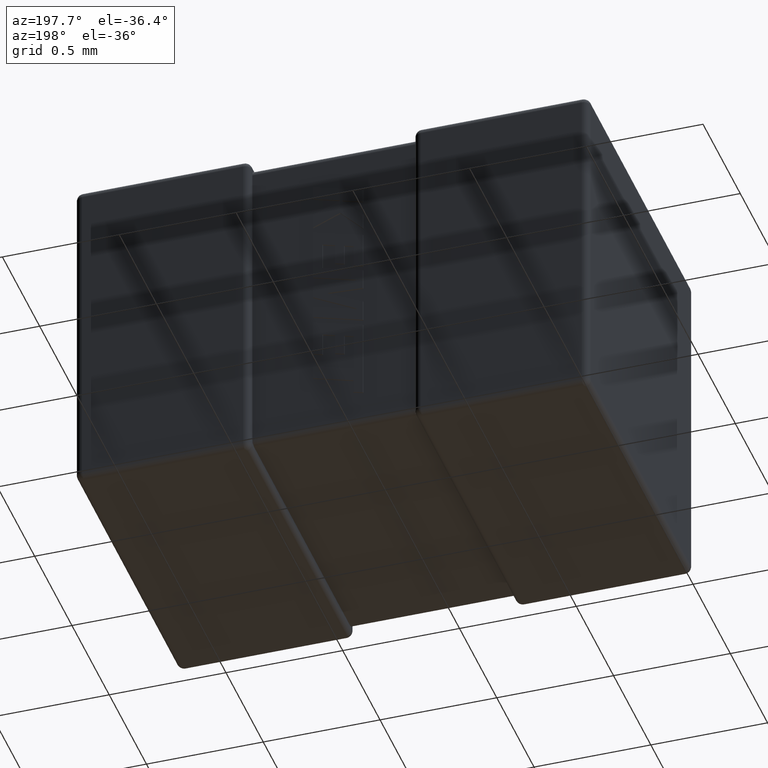
[diagram: clean part render]
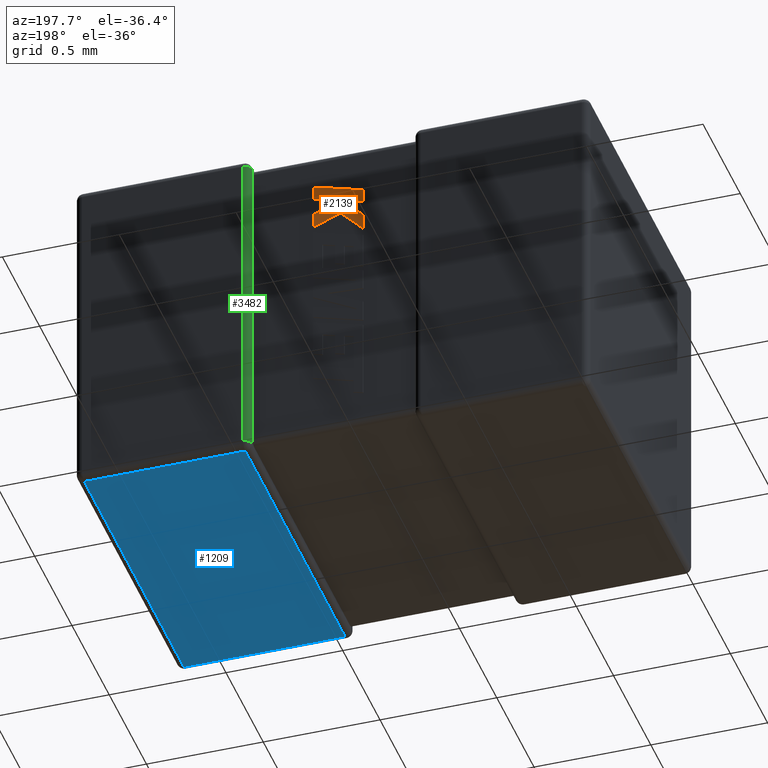
[diagram: same view with three faces highlighted in distinct colors, each labeled with its STEP entity id]
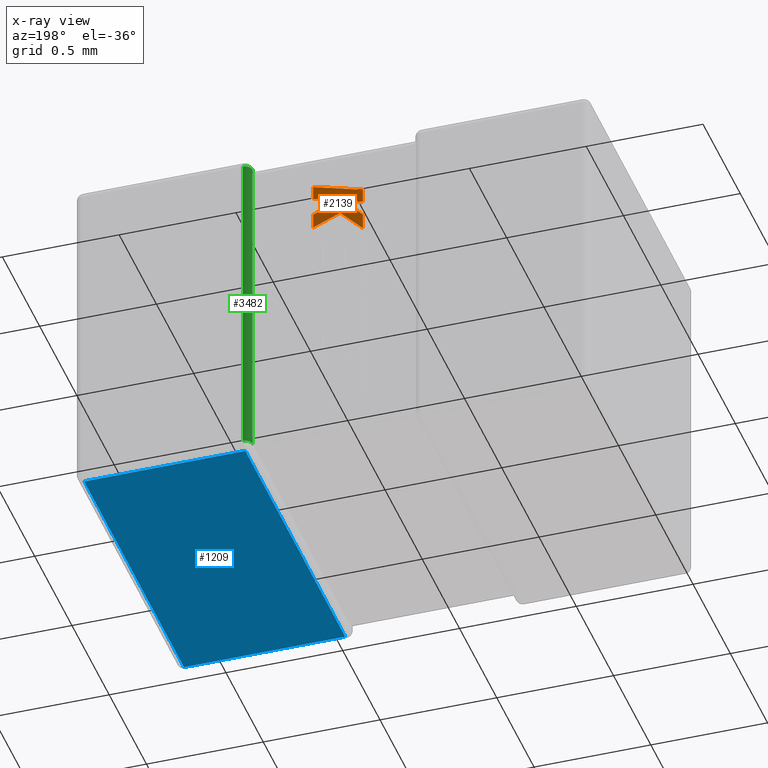
[diagram: x-ray of the same camera — body ghosted, the three highlighted faces saturated]
A machine part, auxiliary view with three faces highlighted in distinct colors.
The next image is the same camera in x-ray (body ghosted, the three faces saturated) — at least one of them is partly hidden behind the body in this view.
Their STEP definitions:

[orange] entity #2139 — the highlighted planar face has unit normal (0, -1, 0).
#34 = DIRECTION ( 'NONE',  ( 0.000000000000000000, 0.000000000000000000, -1.000000000000000000 ) ) ;
#229 = EDGE_CURVE ( 'NONE', #3713, #4522, #1338, .T. ) ;
#251 = LINE ( 'NONE', #2657, #2647 ) ;
#311 = CARTESIAN_POINT ( 'NONE',  ( 1.187999999999999723, 1.374840000000000062, -0.1812499999999999944 ) ) ;
#459 = LINE ( 'NONE', #2202, #3244 ) ;
#475 = ORIENTED_EDGE ( 'NONE', *, *, #2946, .T. ) ;
#478 = CARTESIAN_POINT ( 'NONE',  ( 1.188000000000003498, 1.374840000000000062, -0.3863575419125048205 ) ) ;
#650 = ORIENTED_EDGE ( 'NONE', *, *, #3579, .T. ) ;
#771 = LINE ( 'NONE', #311, #2745 ) ;
#794 = LINE ( 'NONE', #2533, #2790 ) ;
#869 = VERTEX_POINT ( 'NONE', #3908 ) ;
#880 = VERTEX_POINT ( 'NONE', #3141 ) ;
#890 = CARTESIAN_POINT ( 'NONE',  ( 1.188000000000003498, 1.374840000000000062, -0.2418646714761613081 ) ) ;
#1081 = AXIS2_PLACEMENT_3D ( 'NONE', #1143, #3957, #34 ) ;
#1093 = EDGE_CURVE ( 'NONE', #1407, #3730, #459, .T. ) ;
#1101 = EDGE_CURVE ( 'NONE', #1577, #880, #2921, .T. ) ;
#1107 = LINE ( 'NONE', #3231, #3977 ) ;
#1130 = CARTESIAN_POINT ( 'NONE',  ( 0.9748339648551366254, 1.374840000000000062, -0.3677425721875873799 ) ) ;
#1134 = VECTOR ( 'NONE', #3898, 1000.000000000000114 ) ;
#1143 = CARTESIAN_POINT ( 'NONE',  ( -0.2425353559703316564, 1.374839999999999618, 0.003280988965688323017 ) ) ;
#1270 = VECTOR ( 'NONE', #4072, 1000.000000000000000 ) ;
#1326 = EDGE_CURVE ( 'NONE', #3515, #1407, #1107, .T. ) ;
#1338 = LINE ( 'NONE', #1679, #1270 ) ;
#1382 = CARTESIAN_POINT ( 'NONE',  ( 0.9748339648551366254, 1.374840000000000062, -0.4378935269853422851 ) ) ;
#1403 = VERTEX_POINT ( 'NONE', #1130 ) ;
#1407 = VERTEX_POINT ( 'NONE', #890 ) ;
#1462 = PLANE ( 'NONE',  #1081 ) ;
#1526 = VERTEX_POINT ( 'NONE', #4444 ) ;
#1546 = DIRECTION ( 'NONE',  ( -0.9612934544747571142, 0.000000000000000000, -0.2755265765475047868 ) ) ;
#1556 = VECTOR ( 'NONE', #3690, 1000.000000000000000 ) ;
#1577 = VERTEX_POINT ( 'NONE', #4152 ) ;
#1603 = EDGE_CURVE ( 'NONE', #1403, #1838, #1694, .T. ) ;
#1623 = CARTESIAN_POINT ( 'NONE',  ( 1.065736203641994173, 1.374840000000000062, -0.2771488544881054450 ) ) ;
#1679 = CARTESIAN_POINT ( 'NONE',  ( 0.9748339648551366254, 1.374840000000000062, -0.2425102325810264414 ) ) ;
#1694 = LINE ( 'NONE', #3392, #2241 ) ;
#1838 = VERTEX_POINT ( 'NONE', #1623 ) ;
#2139 = ADVANCED_FACE ( 'NONE', ( #3522 ), #1462, .F. ) ;
#2145 = CARTESIAN_POINT ( 'NONE',  ( 1.072256628334915307, 1.374840000000000062, -0.2750391145190215769 ) ) ;
#2202 = CARTESIAN_POINT ( 'NONE',  ( 1.072256628334915307, 1.374840000000000062, -0.2750391145190215769 ) ) ;
#2208 = DIRECTION ( 'NONE',  ( -0.9612861490927336883, 0.000000000000000000, -0.2755520632520512270 ) ) ;
#2241 = VECTOR ( 'NONE', #3049, 1000.000000000000114 ) ;
#2293 = EDGE_CURVE ( 'NONE', #1838, #3713, #2520, .T. ) ;
#2455 = ORIENTED_EDGE ( 'NONE', *, *, #3427, .T. ) ;
#2460 = CARTESIAN_POINT ( 'NONE',  ( 0.9748339648551366254, 1.374840000000000062, -0.3032059234218354438 ) ) ;
#2463 = DIRECTION ( 'NONE',  ( -0.6995643972270459976, 0.000000000000000000, -0.7145695586381775044 ) ) ;
#2485 = CARTESIAN_POINT ( 'NONE',  ( 0.9748339648551366254, 1.374840000000000062, -0.2425102325810264414 ) ) ;
#2502 = CARTESIAN_POINT ( 'NONE',  ( 1.072256628334912643, 1.374840000000000062, -0.3383812162959441427 ) ) ;
#2520 = LINE ( 'NONE', #2940, #3955 ) ;
#2533 = CARTESIAN_POINT ( 'NONE',  ( 1.188000000000003498, 1.374840000000000062, -0.3214981126798991951 ) ) ;
#2647 = VECTOR ( 'NONE', #4098, 1000.000000000000000 ) ;
#2657 = CARTESIAN_POINT ( 'NONE',  ( 0.9748339648551366254, 1.374840000000000062, -0.3677425721875873799 ) ) ;
#2689 = EDGE_CURVE ( 'NONE', #880, #869, #4240, .T. ) ;
#2745 = VECTOR ( 'NONE', #3114, 1000.000000000000114 ) ;
#2790 = VECTOR ( 'NONE', #3930, 1000.000000000000000 ) ;
#2835 = ORIENTED_EDGE ( 'NONE', *, *, #1603, .T. ) ;
#2916 = DIRECTION ( 'NONE',  ( 5.943634068010692500E-14, 0.000000000000000000, -1.000000000000000000 ) ) ;
#2921 = LINE ( 'NONE', #478, #1556 ) ;
#2940 = CARTESIAN_POINT ( 'NONE',  ( 0.9748339648551366254, 1.374840000000000062, -0.3032059234218354438 ) ) ;
#2946 = EDGE_CURVE ( 'NONE', #4522, #3515, #771, .T. ) ;
#2983 = EDGE_CURVE ( 'NONE', #869, #1526, #3457, .T. ) ;
#3049 = DIRECTION ( 'NONE',  ( 0.7083077534944017817, 0.000000000000000000, 0.7059037656364454127 ) ) ;
#3114 = DIRECTION ( 'NONE',  ( 0.9610992334315860974, 0.000000000000000000, 0.2762033010252007426 ) ) ;
#3141 = CARTESIAN_POINT ( 'NONE',  ( 1.188000000000003498, 1.374840000000000062, -0.3863575419125048205 ) ) ;
#3231 = CARTESIAN_POINT ( 'NONE',  ( 1.188000000000003498, 1.374840000000000062, -0.2418646714761613081 ) ) ;
#3244 = VECTOR ( 'NONE', #1546, 1000.000000000000000 ) ;
#3384 = ORIENTED_EDGE ( 'NONE', *, *, #2293, .T. ) ;
#3392 = CARTESIAN_POINT ( 'NONE',  ( 1.065736203641994173, 1.374840000000000062, -0.2771488544881054450 ) ) ;
#3427 = EDGE_CURVE ( 'NONE', #1526, #1403, #251, .T. ) ;
#3457 = LINE ( 'NONE', #1382, #3472 ) ;
#3472 = VECTOR ( 'NONE', #2463, 1000.000000000000000 ) ;
#3483 = EDGE_LOOP ( 'NONE', ( #475, #3639, #4227, #650, #4422, #4491, #4158, #2455, #2835, #3384, #4081 ) ) ;
#3490 = CARTESIAN_POINT ( 'NONE',  ( 1.187999999999999723, 1.374840000000000062, -0.1812499999999999944 ) ) ;
#3515 = VERTEX_POINT ( 'NONE', #3490 ) ;
#3522 = FACE_OUTER_BOUND ( 'NONE', #3483, .T. ) ;
#3579 = EDGE_CURVE ( 'NONE', #3730, #1577, #794, .T. ) ;
#3639 = ORIENTED_EDGE ( 'NONE', *, *, #1326, .T. ) ;
#3690 = DIRECTION ( 'NONE',  ( 0.000000000000000000, 0.000000000000000000, -1.000000000000000000 ) ) ;
#3713 = VERTEX_POINT ( 'NONE', #2460 ) ;
#3730 = VERTEX_POINT ( 'NONE', #2145 ) ;
#3898 = DIRECTION ( 'NONE',  ( -0.9237839814038673047, 0.000000000000000000, 0.3829140317376986125 ) ) ;
#3908 = CARTESIAN_POINT ( 'NONE',  ( 1.072256628334912643, 1.374840000000000062, -0.3383812162959441427 ) ) ;
#3930 = DIRECTION ( 'NONE',  ( 0.9280290862136694185, 0.000000000000000000, -0.3725077383644825324 ) ) ;
#3955 = VECTOR ( 'NONE', #2208, 1000.000000000000114 ) ;
#3957 = DIRECTION ( 'NONE',  ( 0.000000000000000000, -1.000000000000000000, 0.000000000000000000 ) ) ;
#3977 = VECTOR ( 'NONE', #2916, 1000.000000000000000 ) ;
#4072 = DIRECTION ( 'NONE',  ( 0.000000000000000000, 0.000000000000000000, 1.000000000000000000 ) ) ;
#4081 = ORIENTED_EDGE ( 'NONE', *, *, #229, .T. ) ;
#4098 = DIRECTION ( 'NONE',  ( 0.000000000000000000, 0.000000000000000000, 1.000000000000000000 ) ) ;
#4152 = CARTESIAN_POINT ( 'NONE',  ( 1.188000000000003498, 1.374840000000000062, -0.3214981126798991951 ) ) ;
#4158 = ORIENTED_EDGE ( 'NONE', *, *, #2983, .T. ) ;
#4227 = ORIENTED_EDGE ( 'NONE', *, *, #1093, .T. ) ;
#4240 = LINE ( 'NONE', #2502, #1134 ) ;
#4422 = ORIENTED_EDGE ( 'NONE', *, *, #1101, .T. ) ;
#4444 = CARTESIAN_POINT ( 'NONE',  ( 0.9748339648551366254, 1.374840000000000062, -0.4378935269853422851 ) ) ;
#4491 = ORIENTED_EDGE ( 'NONE', *, *, #2689, .T. ) ;
#4522 = VERTEX_POINT ( 'NONE', #2485 ) ;

[blue] entity #1209 — the highlighted planar face has unit normal (0, 0, 1).
#2 = ORIENTED_EDGE ( 'NONE', *, *, #855, .T. ) ;
#324 = DIRECTION ( 'NONE',  ( 0.000000000000000000, 1.000000000000000000, 0.000000000000000000 ) ) ;
#397 = LINE ( 'NONE', #1760, #3202 ) ;
#443 = CARTESIAN_POINT ( 'NONE',  ( 2.169840000000000213, 0.03015999999999999931, -1.449999999999999956 ) ) ;
#520 = FACE_OUTER_BOUND ( 'NONE', #4447, .T. ) ;
#855 = EDGE_CURVE ( 'NONE', #3120, #4198, #3189, .T. ) ;
#886 = CARTESIAN_POINT ( 'NONE',  ( 1.480160000000000142, 0.03015999999999999931, -1.449999999999999956 ) ) ;
#949 = PLANE ( 'NONE',  #2376 ) ;
#1060 = DIRECTION ( 'NONE',  ( -1.000000000000000000, -0.000000000000000000, 0.000000000000000000 ) ) ;
#1209 = ADVANCED_FACE ( 'NONE', ( #520 ), #949, .F. ) ;
#1263 = DIRECTION ( 'NONE',  ( 1.000000000000000000, 0.000000000000000000, -0.000000000000000000 ) ) ;
#1452 = CARTESIAN_POINT ( 'NONE',  ( 1.480160000000000142, 0.000000000000000000, -1.449999999999999956 ) ) ;
#1468 = CARTESIAN_POINT ( 'NONE',  ( 2.200000000000000178, 0.03015999999999999931, -1.449999999999999956 ) ) ;
#1760 = CARTESIAN_POINT ( 'NONE',  ( 2.200000000000000178, 1.369839999999999947, -1.449999999999999956 ) ) ;
#1977 = LINE ( 'NONE', #3365, #2565 ) ;
#2057 = EDGE_CURVE ( 'NONE', #4198, #2285, #397, .T. ) ;
#2230 = DIRECTION ( 'NONE',  ( 1.000000000000000000, -0.000000000000000000, -0.000000000000000000 ) ) ;
#2285 = VERTEX_POINT ( 'NONE', #2786 ) ;
#2376 = AXIS2_PLACEMENT_3D ( 'NONE', #4068, #2976, #1263 ) ;
#2488 = EDGE_CURVE ( 'NONE', #2285, #2853, #1977, .T. ) ;
#2565 = VECTOR ( 'NONE', #3184, 1000.000000000000000 ) ;
#2674 = VECTOR ( 'NONE', #1060, 1000.000000000000000 ) ;
#2786 = CARTESIAN_POINT ( 'NONE',  ( 2.169840000000000213, 1.369839999999999947, -1.449999999999999956 ) ) ;
#2853 = VERTEX_POINT ( 'NONE', #443 ) ;
#2976 = DIRECTION ( 'NONE',  ( 0.000000000000000000, 0.000000000000000000, 1.000000000000000000 ) ) ;
#3009 = EDGE_CURVE ( 'NONE', #2853, #3120, #4223, .T. ) ;
#3120 = VERTEX_POINT ( 'NONE', #886 ) ;
#3172 = CARTESIAN_POINT ( 'NONE',  ( 1.480160000000000142, 1.369839999999999947, -1.449999999999999956 ) ) ;
#3184 = DIRECTION ( 'NONE',  ( -0.000000000000000000, -1.000000000000000000, 0.000000000000000000 ) ) ;
#3189 = LINE ( 'NONE', #1452, #3453 ) ;
#3202 = VECTOR ( 'NONE', #2230, 1000.000000000000000 ) ;
#3365 = CARTESIAN_POINT ( 'NONE',  ( 2.169840000000000213, 0.000000000000000000, -1.449999999999999956 ) ) ;
#3453 = VECTOR ( 'NONE', #324, 1000.000000000000000 ) ;
#3630 = ORIENTED_EDGE ( 'NONE', *, *, #2057, .T. ) ;
#3989 = ORIENTED_EDGE ( 'NONE', *, *, #3009, .T. ) ;
#4068 = CARTESIAN_POINT ( 'NONE',  ( 2.200000000000000178, 0.000000000000000000, -1.449999999999999956 ) ) ;
#4083 = ORIENTED_EDGE ( 'NONE', *, *, #2488, .T. ) ;
#4198 = VERTEX_POINT ( 'NONE', #3172 ) ;
#4223 = LINE ( 'NONE', #1468, #2674 ) ;
#4447 = EDGE_LOOP ( 'NONE', ( #3989, #2, #3630, #4083 ) ) ;

[green] entity #3482 — the highlighted cylindrical surface (edge-blend (fillet) strip) has radius 0.0302 mm, axis along (-0, 0, 1).
#14 = VECTOR ( 'NONE', #4132, 1000.000000000000000 ) ;
#42 = CARTESIAN_POINT ( 'NONE',  ( 1.449999999999951994, 1.369840000000002833, -1.391253915450343825 ) ) ;
#104 = CARTESIAN_POINT ( 'NONE',  ( 1.450867674844866118, 1.362618567035023487, -0.04070245295749676251 ) ) ;
#120 = CARTESIAN_POINT ( 'NONE',  ( 1.480160000000000142, 1.399999999999999911, -0.03015999999999999931 ) ) ;
#188 = CARTESIAN_POINT ( 'NONE',  ( 1.480160000000000142, 1.399999999999999911, 0.000000000000000000 ) ) ;
#200 = AXIS2_PLACEMENT_3D ( 'NONE', #4401, #1303, #1952 ) ;
#368 = B_SPLINE_CURVE_WITH_KNOTS ( 'NONE', 3,
 ( #4222, #1125, #2862, #3190, #810, #3598, #3132, #3229, #42, #2215 ),
 .UNSPECIFIED., .F., .F.,
 ( 4, 3, 3, 4 ),
 ( 0.000000000000000000, 9.493065180756492016E-06, 1.893605998182678319E-05, 2.360435136841300933E-05 ),
 .UNSPECIFIED. ) ;
#388 = CARTESIAN_POINT ( 'NONE',  ( 1.449985399699493804, 1.369267654042098936, -0.05358313352535763741 ) ) ;
#456 = VERTEX_POINT ( 'NONE', #1775 ) ;
#461 = VERTEX_POINT ( 'NONE', #3166 ) ;
#466 = VECTOR ( 'NONE', #3486, 1000.000000000000000 ) ;
#544 =( BOUNDED_CURVE ( )  B_SPLINE_CURVE ( 3, ( #3025, #1287, #2369, #4437 ),
 .UNSPECIFIED., .F., .F. ) 
 B_SPLINE_CURVE_WITH_KNOTS ( ( 4, 4 ),
 ( 1.570796326794896558, 1.868047688116105665 ),
 .UNSPECIFIED. ) 
 CURVE ( )  GEOMETRIC_REPRESENTATION_ITEM ( )  RATIONAL_B_SPLINE_CURVE ( ( 1.000000000000000000, 0.9926503465430336348, 0.9926503465430336348, 1.000000000000000000 ) ) 
 REPRESENTATION_ITEM ( '' )  );
#654 = ORIENTED_EDGE ( 'NONE', *, *, #3330, .T. ) ;
#669 = FACE_OUTER_BOUND ( 'NONE', #3435, .T. ) ;
#810 = CARTESIAN_POINT ( 'NONE',  ( 1.450023110991173425, 1.367978254858580600, -1.400577456366951079 ) ) ;
#1112 = CARTESIAN_POINT ( 'NONE',  ( 1.451322662047239032, 1.361006340520586333, -1.411006340520586155 ) ) ;
#1115 = ORIENTED_EDGE ( 'NONE', *, *, #1611, .T. ) ;
#1125 = CARTESIAN_POINT ( 'NONE',  ( 1.450652778470559845, 1.363193164580843275, -1.408819516460329213 ) ) ;
#1287 = CARTESIAN_POINT ( 'NONE',  ( 1.450000000000000178, 1.366840578092707092, -1.416840578092706915 ) ) ;
#1303 = DIRECTION ( 'NONE',  ( 0.000000000000000000, 0.000000000000000000, -1.000000000000000000 ) ) ;
#1314 = EDGE_CURVE ( 'NONE', #1347, #461, #4423, .T. ) ;
#1347 = VERTEX_POINT ( 'NONE', #120 ) ;
#1364 = LINE ( 'NONE', #188, #14 ) ;
#1372 = ORIENTED_EDGE ( 'NONE', *, *, #3470, .F. ) ;
#1540 = CARTESIAN_POINT ( 'NONE',  ( 1.451322662047238810, 1.361006340520586333, -0.03899365947941371702 ) ) ;
#1579 = CARTESIAN_POINT ( 'NONE',  ( 1.450000000000000178, 1.369839999999999947, -0.06031999999999999168 ) ) ;
#1611 = EDGE_CURVE ( 'NONE', #3264, #456, #368, .T. ) ;
#1669 = VERTEX_POINT ( 'NONE', #1579 ) ;
#1678 = ORIENTED_EDGE ( 'NONE', *, *, #4539, .T. ) ;
#1775 = CARTESIAN_POINT ( 'NONE',  ( 1.450000000000000178, 1.369839999999999947, -1.389679999999999804 ) ) ;
#1799 = CARTESIAN_POINT ( 'NONE',  ( 1.450107203367576814, 1.367071229367175178, -0.04726016830809477709 ) ) ;
#1898 = CARTESIAN_POINT ( 'NONE',  ( 1.450000000000000400, 1.369839999999999947, -0.03015999999999999584 ) ) ;
#1952 = DIRECTION ( 'NONE',  ( -1.000000000000000000, 0.000000000000000000, 0.000000000000000000 ) ) ;
#1970 = B_SPLINE_CURVE_WITH_KNOTS ( 'NONE', 3,
 ( #3164, #2152, #388, #3540, #1799, #4250, #4379, #104, #3966, #1540 ),
 .UNSPECIFIED., .F., .F.,
 ( 4, 3, 3, 4 ),
 ( 0.000000000000000000, 1.003666877226004736E-05, 2.009406401134250584E-05, 2.363098448886292842E-05 ),
 .UNSPECIFIED. ) ;
#2101 = CARTESIAN_POINT ( 'NONE',  ( 1.450000000000000178, 1.369839999999999947, -1.449999999999999956 ) ) ;
#2152 = CARTESIAN_POINT ( 'NONE',  ( 1.450000000000000178, 1.369839999999999947, -0.05697444374258201633 ) ) ;
#2173 = DIRECTION ( 'NONE',  ( 1.000000000000000000, 0.000000000000000000, -1.123385871690053535E-16 ) ) ;
#2215 = CARTESIAN_POINT ( 'NONE',  ( 1.450000000000000178, 1.369839999999999947, -1.389679999999999804 ) ) ;
#2298 = CARTESIAN_POINT ( 'NONE',  ( 1.450444151710232665, 1.363874223252798723, -0.03612577674720132692 ) ) ;
#2353 = AXIS2_PLACEMENT_3D ( 'NONE', #3071, #2419, #4479 ) ;
#2369 = CARTESIAN_POINT ( 'NONE',  ( 1.450444151710232221, 1.363874223252798501, -1.413874223252798767 ) ) ;
#2419 = DIRECTION ( 'NONE',  ( -0.000000000000000000, 0.000000000000000000, 1.000000000000000000 ) ) ;
#2429 = ORIENTED_EDGE ( 'NONE', *, *, #1314, .F. ) ;
#2730 = VERTEX_POINT ( 'NONE', #2822 ) ;
#2804 = ORIENTED_EDGE ( 'NONE', *, *, #4385, .F. ) ;
#2809 = ORIENTED_EDGE ( 'NONE', *, *, #3868, .F. ) ;
#2822 = CARTESIAN_POINT ( 'NONE',  ( 1.480160000000000142, 1.399999999999999911, -1.419839999999999991 ) ) ;
#2862 = CARTESIAN_POINT ( 'NONE',  ( 1.450338001875950189, 1.365111276409149088, -1.406198597072136680 ) ) ;
#2952 = CARTESIAN_POINT ( 'NONE',  ( 1.451322662047238810, 1.361006340520586333, -0.03899365947941371702 ) ) ;
#2984 = EDGE_CURVE ( 'NONE', #456, #1669, #3535, .T. ) ;
#3025 = CARTESIAN_POINT ( 'NONE',  ( 1.450000000000000400, 1.369839999999999947, -1.419839999999999991 ) ) ;
#3071 = CARTESIAN_POINT ( 'NONE',  ( 1.480160000000000142, 1.369839999999999947, 0.000000000000000000 ) ) ;
#3132 = CARTESIAN_POINT ( 'NONE',  ( 1.450002264867094270, 1.369470389862834203, -1.394387257356502374 ) ) ;
#3164 = CARTESIAN_POINT ( 'NONE',  ( 1.450000000000000178, 1.369839999999999947, -0.06031999999999999168 ) ) ;
#3166 = CARTESIAN_POINT ( 'NONE',  ( 1.450000000000000400, 1.369839999999999947, -0.03015999999999999584 ) ) ;
#3190 = CARTESIAN_POINT ( 'NONE',  ( 1.450180287205764307, 1.366547216864848924, -1.403383220714021107 ) ) ;
#3209 = DIRECTION ( 'NONE',  ( 1.123385871690053781E-16, -0.000000000000000000, 1.000000000000000000 ) ) ;
#3229 = CARTESIAN_POINT ( 'NONE',  ( 1.449999254202598120, 1.369716040112426203, -1.392832633049602586 ) ) ;
#3264 = VERTEX_POINT ( 'NONE', #1112 ) ;
#3296 = CARTESIAN_POINT ( 'NONE',  ( 1.480160000000000142, 1.369839999999999947, -0.03015999999999999931 ) ) ;
#3330 = EDGE_CURVE ( 'NONE', #4093, #3264, #544, .T. ) ;
#3435 = EDGE_LOOP ( 'NONE', ( #2429, #2804, #1372, #654, #1115, #3956, #1678, #2809 ) ) ;
#3470 = EDGE_CURVE ( 'NONE', #4093, #2730, #3960, .T. ) ;
#3482 = ADVANCED_FACE ( 'NONE', ( #669 ), #3782, .T. ) ;
#3486 = DIRECTION ( 'NONE',  ( -0.000000000000000000, -0.000000000000000000, 1.000000000000000000 ) ) ;
#3535 = LINE ( 'NONE', #2101, #466 ) ;
#3540 = CARTESIAN_POINT ( 'NONE',  ( 1.450046268899098267, 1.368170030185130726, -0.05042334500700667438 ) ) ;
#3566 =( BOUNDED_CURVE ( )  B_SPLINE_CURVE ( 3, ( #1898, #3679, #2298, #4001 ),
 .UNSPECIFIED., .F., .F. ) 
 B_SPLINE_CURVE_WITH_KNOTS ( ( 4, 4 ),
 ( 1.570796326794896558, 1.868047688116102778 ),
 .UNSPECIFIED. ) 
 CURVE ( )  GEOMETRIC_REPRESENTATION_ITEM ( )  RATIONAL_B_SPLINE_CURVE ( ( 1.000000000000000000, 0.9926503465430338569, 0.9926503465430338569, 1.000000000000000000 ) ) 
 REPRESENTATION_ITEM ( '' )  );
#3598 = CARTESIAN_POINT ( 'NONE',  ( 1.450008297138921209, 1.368978196500942435, -1.397502156549001562 ) ) ;
#3679 = CARTESIAN_POINT ( 'NONE',  ( 1.450000000000000400, 1.366840578092706870, -0.03315942190729304073 ) ) ;
#3689 = VERTEX_POINT ( 'NONE', #2952 ) ;
#3782 = CYLINDRICAL_SURFACE ( 'NONE', #2353, 0.03015999999999999584 ) ;
#3868 = EDGE_CURVE ( 'NONE', #461, #3689, #3566, .T. ) ;
#3956 = ORIENTED_EDGE ( 'NONE', *, *, #2984, .T. ) ;
#3960 = CIRCLE ( 'NONE', #200, 0.03015999999999999584 ) ;
#3966 = CARTESIAN_POINT ( 'NONE',  ( 1.451069819438131292, 1.361831741112315086, -0.03981906007100203398 ) ) ;
#4001 = CARTESIAN_POINT ( 'NONE',  ( 1.451322662047238810, 1.361006340520586333, -0.03899365947941371702 ) ) ;
#4050 = AXIS2_PLACEMENT_3D ( 'NONE', #3296, #3209, #2173 ) ;
#4093 = VERTEX_POINT ( 'NONE', #4412 ) ;
#4132 = DIRECTION ( 'NONE',  ( -0.000000000000000000, 0.000000000000000000, 1.000000000000000000 ) ) ;
#4222 = CARTESIAN_POINT ( 'NONE',  ( 1.451322662047239032, 1.361006340520586333, -1.411006340520586155 ) ) ;
#4250 = CARTESIAN_POINT ( 'NONE',  ( 1.450253192700503124, 1.365408097086818540, -0.04423577735503608083 ) ) ;
#4379 = CARTESIAN_POINT ( 'NONE',  ( 1.450706144435244260, 1.363351857556241553, -0.04163126649992015399 ) ) ;
#4385 = EDGE_CURVE ( 'NONE', #2730, #1347, #1364, .T. ) ;
#4401 = CARTESIAN_POINT ( 'NONE',  ( 1.480160000000000142, 1.369839999999999947, -1.419839999999999991 ) ) ;
#4412 = CARTESIAN_POINT ( 'NONE',  ( 1.450000000000000400, 1.369839999999999947, -1.419839999999999991 ) ) ;
#4423 = CIRCLE ( 'NONE', #4050, 0.03015999999999999584 ) ;
#4437 = CARTESIAN_POINT ( 'NONE',  ( 1.451322662047239032, 1.361006340520586333, -1.411006340520586155 ) ) ;
#4479 = DIRECTION ( 'NONE',  ( 1.000000000000000000, 0.000000000000000000, 0.000000000000000000 ) ) ;
#4539 = EDGE_CURVE ( 'NONE', #1669, #3689, #1970, .T. ) ;